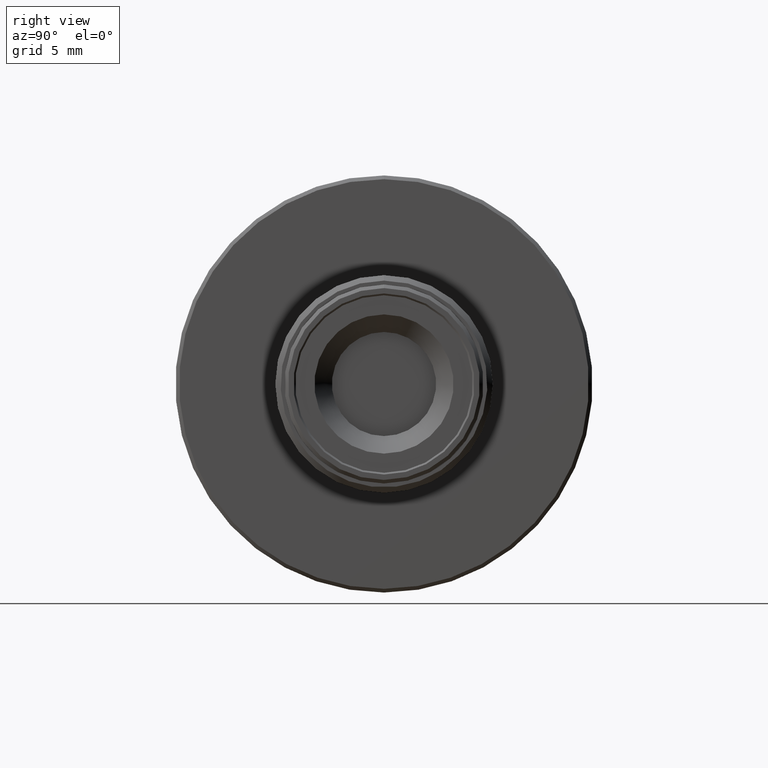
[diagram: clean part render]
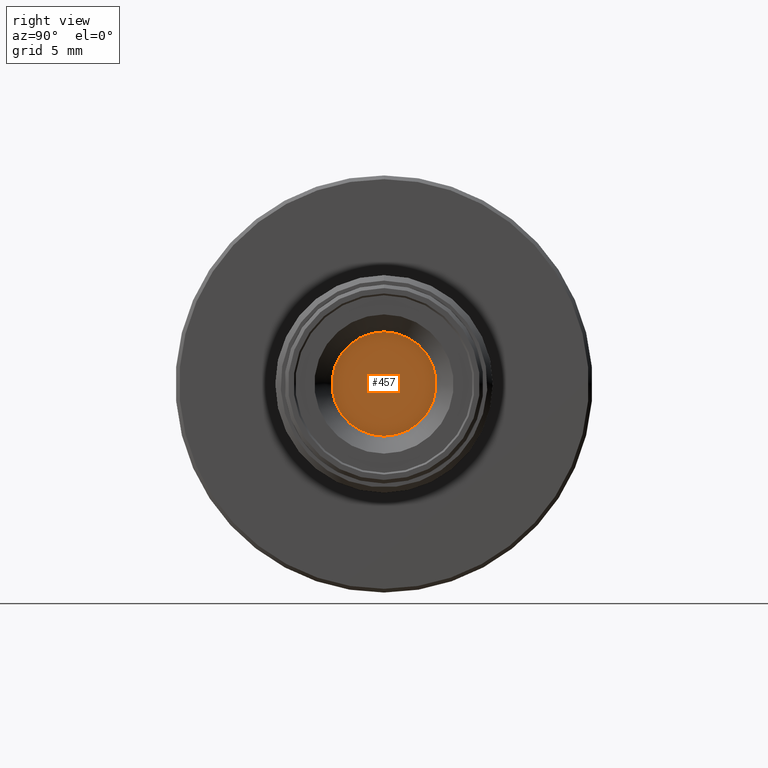
[diagram: same view with one face highlighted and labeled with its STEP entity id]
A machine part, right view. The second image highlights one B-rep face of the part: STEP entity #457.
In plain terms, the highlighted planar face has unit normal (-1, 0, 0).
Its self-contained STEP definition (entity closure, byte-faithful):
#29=PLANE('',#490);
#41=ORIENTED_EDGE('',*,*,#90,.F.);
#90=EDGE_CURVE('',#115,#115,#140,.T.);
#115=VERTEX_POINT('',#650);
#140=CIRCLE('',#491,2.87169700012366);
#166=EDGE_LOOP('',(#41));
#216=FACE_BOUND('',#166,.T.);
#457=ADVANCED_FACE('',(#216),#29,.F.);
#490=AXIS2_PLACEMENT_3D('',#648,#547,#548);
#491=AXIS2_PLACEMENT_3D('',#649,#549,#550);
#547=DIRECTION('',(-1.,0.,0.));
#548=DIRECTION('',(0.,0.,1.));
#549=DIRECTION('',(-1.,0.,0.));
#550=DIRECTION('',(0.,0.,1.));
#648=CARTESIAN_POINT('',(-4.21514651050595,0.,0.));
#649=CARTESIAN_POINT('',(-4.21514651050595,0.,0.));
#650=CARTESIAN_POINT('',(-4.21514651050595,0.,2.87169700012366));